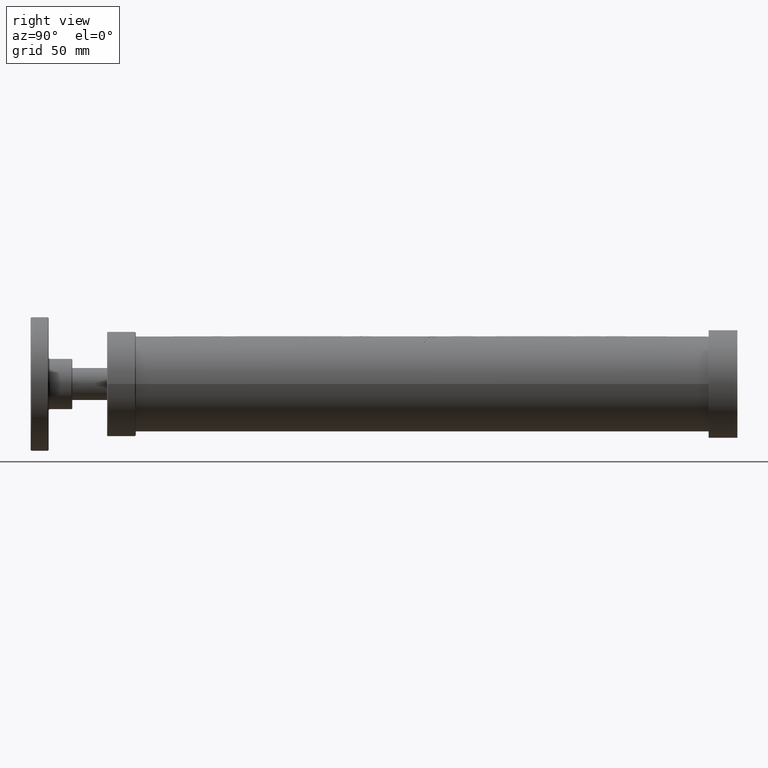
[diagram: clean part render]
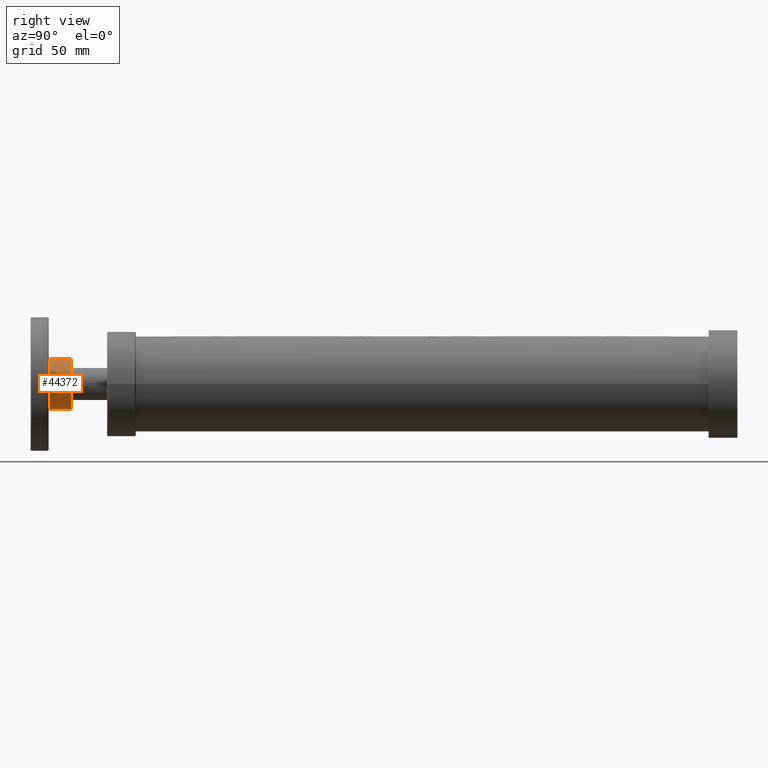
[diagram: same view with one face highlighted and labeled with its STEP entity id]
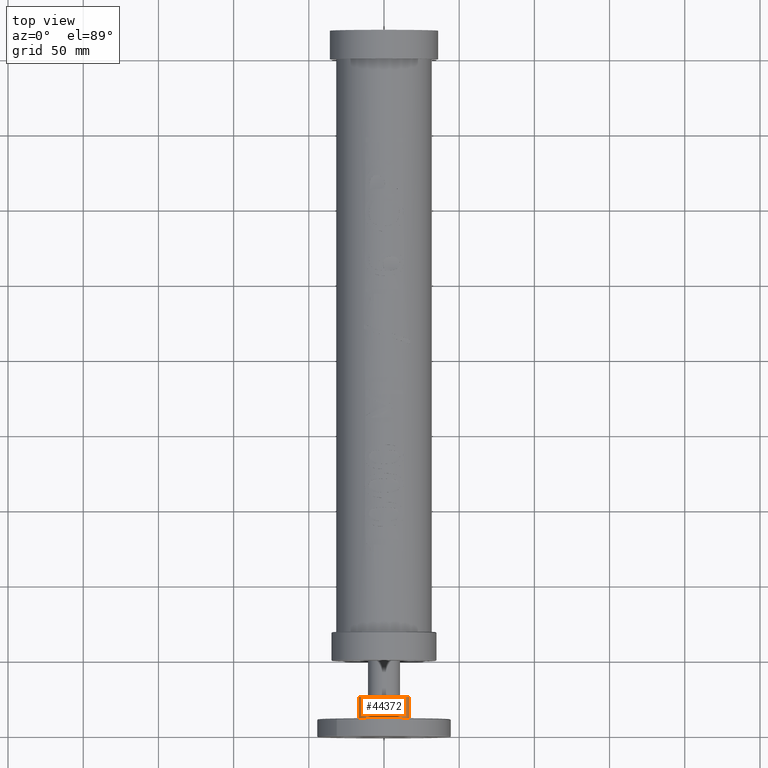
[diagram: same view with one face highlighted and labeled with its STEP entity id]
A machine part, right view. The second image highlights one B-rep face of the part: STEP entity #44372.
A second angle (top view) of the same face is appended — the face is thin or edge-on in the first view.
In plain terms, the highlighted cylindrical surface (bore or boss wall) has radius 16.7704 mm, axis along (0, 1, -0).
Its self-contained STEP definition (entity closure, byte-faithful):
#44338=CARTESIAN_POINT('',(-0.466867252278417,-0.939999999999991,0.466867252278413));
#44339=VERTEX_POINT('',#44338);
#44340=CARTESIAN_POINT('',(1.212626E-015,-0.939999999999992,-5.384344E-015));
#44341=DIRECTION('',(7.121303E-016,1.0,-7.121303E-016));
#44342=DIRECTION('',(0.707106781186547,-1.007104E-015,-0.707106781186548));
#44343=AXIS2_PLACEMENT_3D('',#44340,#44341,#44342);
#44344=CIRCLE('',#44343,0.660250000000000);
#44345=EDGE_CURVE('',#44339,#44339,#44344,.T.);
#44353=CARTESIAN_POINT('',(9.089782E-016,-1.219999999999992,-5.289200E-015));
#44354=DIRECTION('',(1.084458E-015,1.0,-3.398030E-016));
#44355=DIRECTION('',(-0.707106781186547,1.007104E-015,0.707106781186548));
#44356=AXIS2_PLACEMENT_3D('',#44353,#44354,#44355);
#44357=CYLINDRICAL_SURFACE('',#44356,0.660250000000000);
#44358=CARTESIAN_POINT('',(-0.466867252278417,-1.499999999999991,0.466867252278413));
#44359=VERTEX_POINT('',#44358);
#44360=CARTESIAN_POINT('',(6.053300E-016,-1.499999999999992,-5.194055E-015));
#44361=DIRECTION('',(-7.121303E-016,-1.0,7.121303E-016));
#44362=DIRECTION('',(0.707106781186547,-1.007104E-015,-0.707106781186548));
#44363=AXIS2_PLACEMENT_3D('',#44360,#44361,#44362);
#44364=CIRCLE('',#44363,0.660250000000000);
#44365=EDGE_CURVE('',#44359,#44359,#44364,.T.);
#44366=ORIENTED_EDGE('',*,*,#44365,.F.);
#44367=EDGE_LOOP('',(#44366));
#44368=FACE_OUTER_BOUND('',#44367,.T.);
#44369=ORIENTED_EDGE('',*,*,#44345,.F.);
#44370=EDGE_LOOP('',(#44369));
#44371=FACE_BOUND('',#44370,.T.);
#44372=ADVANCED_FACE('',(#44368,#44371),#44357,.T.);